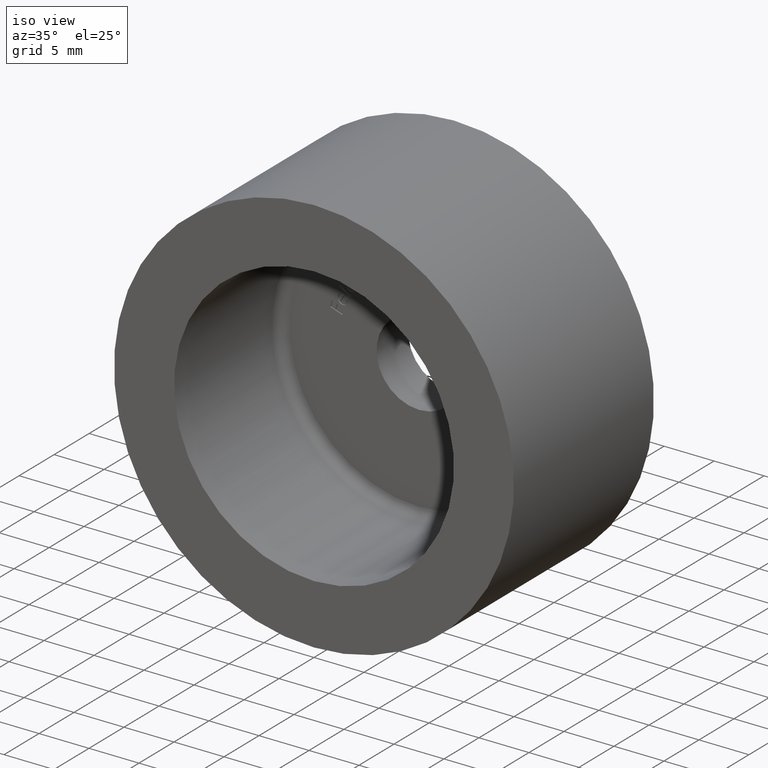
[diagram: clean part render]
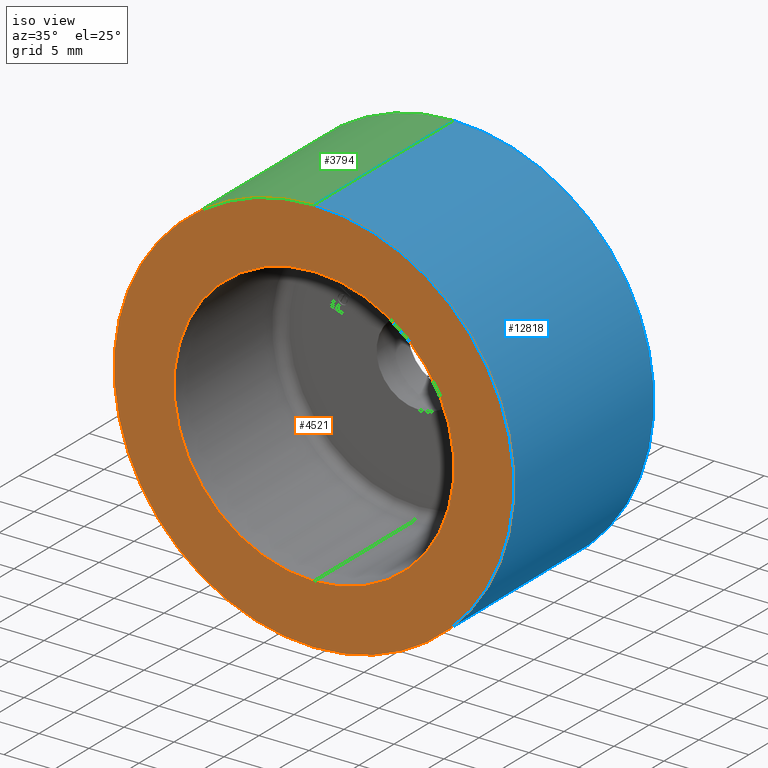
[diagram: same view with three faces highlighted in distinct colors, each labeled with its STEP entity id]
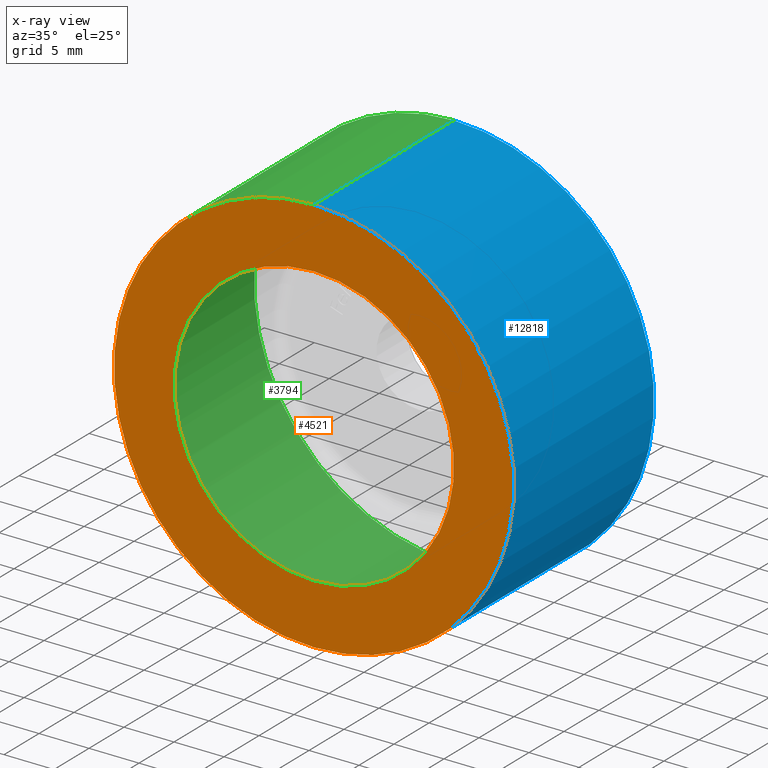
[diagram: x-ray of the same camera — body ghosted, the three highlighted faces saturated]
A machine part, iso view with three faces highlighted in distinct colors.
The next image is the same camera in x-ray (body ghosted, the three faces saturated) — at least one of them is partly hidden behind the body in this view.
Their STEP definitions:

[orange] entity #4521 — the highlighted planar face has unit normal (0, -1, 0).
#345 = DIRECTION ( 'NONE',  ( 0.000000000000000000, 0.000000000000000000, -1.000000000000000000 ) ) ;
#989 = CIRCLE ( 'NONE', #5848, 20.00000000000000000 ) ;
#1025 = VERTEX_POINT ( 'NONE', #1897 ) ;
#1130 = CARTESIAN_POINT ( 'NONE',  ( -8.499999999999998224, -1.207637078764412262E-15, 0.000000000000000000 ) ) ;
#1814 = DIRECTION ( 'NONE',  ( 0.000000000000000000, 0.000000000000000000, 1.000000000000000000 ) ) ;
#1897 = CARTESIAN_POINT ( 'NONE',  ( 1.714505518806294638E-15, 0.000000000000000000, 14.00000000000000000 ) ) ;
#2017 = VERTEX_POINT ( 'NONE', #10093 ) ;
#2519 = DIRECTION ( 'NONE',  ( -0.000000000000000000, 1.000000000000000000, -0.000000000000000000 ) ) ;
#2927 = CARTESIAN_POINT ( 'NONE',  ( 0.000000000000000000, 0.000000000000000000, 0.000000000000000000 ) ) ;
#2989 = ORIENTED_EDGE ( 'NONE', *, *, #3015, .F. ) ;
#3000 = VERTEX_POINT ( 'NONE', #6832 ) ;
#3015 = EDGE_CURVE ( 'NONE', #1025, #2017, #5189, .T. ) ;
#3692 = EDGE_CURVE ( 'NONE', #3000, #7344, #11856, .T. ) ;
#3824 = DIRECTION ( 'NONE',  ( 0.000000000000000000, 0.000000000000000000, 1.000000000000000000 ) ) ;
#3851 = CARTESIAN_POINT ( 'NONE',  ( 0.000000000000000000, 0.000000000000000000, 0.000000000000000000 ) ) ;
#4393 = EDGE_CURVE ( 'NONE', #2017, #1025, #10110, .T. ) ;
#4521 = ADVANCED_FACE ( 'NONE', ( #10866, #4606 ), #8426, .T. ) ;
#4606 = FACE_OUTER_BOUND ( 'NONE', #5200, .T. ) ;
#4834 = CARTESIAN_POINT ( 'NONE',  ( 0.000000000000000000, 0.000000000000000000, 0.000000000000000000 ) ) ;
#5083 = CARTESIAN_POINT ( 'NONE',  ( 0.000000000000000000, 0.000000000000000000, 20.00000000000000000 ) ) ;
#5189 = CIRCLE ( 'NONE', #13981, 14.00000000000000000 ) ;
#5200 = EDGE_LOOP ( 'NONE', ( #10300, #10783 ) ) ;
#5848 = AXIS2_PLACEMENT_3D ( 'NONE', #2927, #11411, #1814 ) ;
#5954 = DIRECTION ( 'NONE',  ( 0.000000000000000000, -0.000000000000000000, -1.000000000000000000 ) ) ;
#6832 = CARTESIAN_POINT ( 'NONE',  ( 2.449293598294706513E-15, 0.000000000000000000, -20.00000000000000000 ) ) ;
#7344 = VERTEX_POINT ( 'NONE', #5083 ) ;
#7391 = EDGE_CURVE ( 'NONE', #7344, #3000, #989, .T. ) ;
#7610 = DIRECTION ( 'NONE',  ( 0.000000000000000000, 0.000000000000000000, -1.000000000000000000 ) ) ;
#8208 = EDGE_LOOP ( 'NONE', ( #11573, #2989 ) ) ;
#8426 = PLANE ( 'NONE',  #10919 ) ;
#8676 = CARTESIAN_POINT ( 'NONE',  ( 0.000000000000000000, 0.000000000000000000, 0.000000000000000000 ) ) ;
#8731 = DIRECTION ( 'NONE',  ( 0.000000000000000000, -1.000000000000000000, 0.000000000000000000 ) ) ;
#10093 = CARTESIAN_POINT ( 'NONE',  ( 0.000000000000000000, 0.000000000000000000, -14.00000000000000000 ) ) ;
#10110 = CIRCLE ( 'NONE', #10817, 14.00000000000000000 ) ;
#10300 = ORIENTED_EDGE ( 'NONE', *, *, #7391, .F. ) ;
#10783 = ORIENTED_EDGE ( 'NONE', *, *, #3692, .F. ) ;
#10817 = AXIS2_PLACEMENT_3D ( 'NONE', #8676, #11232, #345 ) ;
#10866 = FACE_BOUND ( 'NONE', #8208, .T. ) ;
#10919 = AXIS2_PLACEMENT_3D ( 'NONE', #1130, #13219, #5954 ) ;
#11232 = DIRECTION ( 'NONE',  ( 0.000000000000000000, -1.000000000000000000, 0.000000000000000000 ) ) ;
#11411 = DIRECTION ( 'NONE',  ( -0.000000000000000000, 1.000000000000000000, -0.000000000000000000 ) ) ;
#11573 = ORIENTED_EDGE ( 'NONE', *, *, #4393, .F. ) ;
#11856 = CIRCLE ( 'NONE', #15579, 20.00000000000000000 ) ;
#13219 = DIRECTION ( 'NONE',  ( 0.000000000000000000, -1.000000000000000000, 0.000000000000000000 ) ) ;
#13981 = AXIS2_PLACEMENT_3D ( 'NONE', #3851, #8731, #7610 ) ;
#15579 = AXIS2_PLACEMENT_3D ( 'NONE', #4834, #2519, #3824 ) ;

[blue] entity #12818 — the highlighted cylindrical surface (partial cylindrical patch) has radius 20 mm, axis along (-0, 1, -0).
#480 = DIRECTION ( 'NONE',  ( -0.000000000000000000, 1.000000000000000000, -0.000000000000000000 ) ) ;
#527 = DIRECTION ( 'NONE',  ( 0.000000000000000000, 0.000000000000000000, 1.000000000000000000 ) ) ;
#632 = FACE_OUTER_BOUND ( 'NONE', #10689, .T. ) ;
#889 = EDGE_CURVE ( 'NONE', #7344, #11973, #8044, .T. ) ;
#989 = CIRCLE ( 'NONE', #5848, 20.00000000000000000 ) ;
#1189 = ORIENTED_EDGE ( 'NONE', *, *, #889, .F. ) ;
#1294 = ORIENTED_EDGE ( 'NONE', *, *, #7391, .T. ) ;
#1814 = DIRECTION ( 'NONE',  ( 0.000000000000000000, 0.000000000000000000, 1.000000000000000000 ) ) ;
#2927 = CARTESIAN_POINT ( 'NONE',  ( 0.000000000000000000, 0.000000000000000000, 0.000000000000000000 ) ) ;
#3000 = VERTEX_POINT ( 'NONE', #6832 ) ;
#3320 = CARTESIAN_POINT ( 'NONE',  ( 2.449293598294706907E-15, 20.00000000000000000, -20.00000000000000355 ) ) ;
#4487 = CARTESIAN_POINT ( 'NONE',  ( 2.449293598294706907E-15, 20.00000000000000000, -20.00000000000000355 ) ) ;
#5083 = CARTESIAN_POINT ( 'NONE',  ( 0.000000000000000000, 0.000000000000000000, 20.00000000000000000 ) ) ;
#5664 = DIRECTION ( 'NONE',  ( -0.000000000000000000, 1.000000000000000000, -0.000000000000000000 ) ) ;
#5848 = AXIS2_PLACEMENT_3D ( 'NONE', #2927, #11411, #1814 ) ;
#5915 = EDGE_CURVE ( 'NONE', #11973, #13315, #10667, .T. ) ;
#6209 = EDGE_CURVE ( 'NONE', #3000, #13315, #11847, .T. ) ;
#6832 = CARTESIAN_POINT ( 'NONE',  ( 2.449293598294706513E-15, 0.000000000000000000, -20.00000000000000000 ) ) ;
#7056 = ORIENTED_EDGE ( 'NONE', *, *, #5915, .F. ) ;
#7344 = VERTEX_POINT ( 'NONE', #5083 ) ;
#7391 = EDGE_CURVE ( 'NONE', #7344, #3000, #989, .T. ) ;
#7852 = CARTESIAN_POINT ( 'NONE',  ( 0.000000000000000000, 20.00000000000000000, 0.000000000000000000 ) ) ;
#8044 = LINE ( 'NONE', #12730, #12813 ) ;
#8097 = AXIS2_PLACEMENT_3D ( 'NONE', #14957, #13859, #11677 ) ;
#9978 = ORIENTED_EDGE ( 'NONE', *, *, #6209, .T. ) ;
#10667 = CIRCLE ( 'NONE', #11222, 20.00000000000000355 ) ;
#10689 = EDGE_LOOP ( 'NONE', ( #1294, #9978, #7056, #1189 ) ) ;
#11222 = AXIS2_PLACEMENT_3D ( 'NONE', #7852, #480, #527 ) ;
#11411 = DIRECTION ( 'NONE',  ( -0.000000000000000000, 1.000000000000000000, -0.000000000000000000 ) ) ;
#11677 = DIRECTION ( 'NONE',  ( 0.000000000000000000, 0.000000000000000000, 1.000000000000000000 ) ) ;
#11847 = LINE ( 'NONE', #4487, #12027 ) ;
#11973 = VERTEX_POINT ( 'NONE', #13797 ) ;
#12027 = VECTOR ( 'NONE', #5664, 1000.000000000000000 ) ;
#12730 = CARTESIAN_POINT ( 'NONE',  ( 0.000000000000000000, 20.00000000000000000, 20.00000000000000355 ) ) ;
#12813 = VECTOR ( 'NONE', #15132, 1000.000000000000000 ) ;
#12818 = ADVANCED_FACE ( 'NONE', ( #632 ), #14463, .T. ) ;
#13315 = VERTEX_POINT ( 'NONE', #3320 ) ;
#13797 = CARTESIAN_POINT ( 'NONE',  ( 0.000000000000000000, 20.00000000000000000, 20.00000000000000355 ) ) ;
#13859 = DIRECTION ( 'NONE',  ( -0.000000000000000000, 1.000000000000000000, -0.000000000000000000 ) ) ;
#14463 = CYLINDRICAL_SURFACE ( 'NONE', #8097, 20.00000000000000355 ) ;
#14957 = CARTESIAN_POINT ( 'NONE',  ( 0.000000000000000000, 20.00000000000000000, 0.000000000000000000 ) ) ;
#15132 = DIRECTION ( 'NONE',  ( -0.000000000000000000, 1.000000000000000000, -0.000000000000000000 ) ) ;

[green] entity #3794 — the highlighted cylindrical surface (partial cylindrical patch) has radius 20 mm, axis along (-0, 1, -0).
#889 = EDGE_CURVE ( 'NONE', #7344, #11973, #8044, .T. ) ;
#1515 = CARTESIAN_POINT ( 'NONE',  ( 0.000000000000000000, 20.00000000000000000, 0.000000000000000000 ) ) ;
#2519 = DIRECTION ( 'NONE',  ( -0.000000000000000000, 1.000000000000000000, -0.000000000000000000 ) ) ;
#2625 = DIRECTION ( 'NONE',  ( -0.000000000000000000, 1.000000000000000000, -0.000000000000000000 ) ) ;
#2730 = DIRECTION ( 'NONE',  ( -0.000000000000000000, 1.000000000000000000, -0.000000000000000000 ) ) ;
#3000 = VERTEX_POINT ( 'NONE', #6832 ) ;
#3320 = CARTESIAN_POINT ( 'NONE',  ( 2.449293598294706907E-15, 20.00000000000000000, -20.00000000000000355 ) ) ;
#3692 = EDGE_CURVE ( 'NONE', #3000, #7344, #11856, .T. ) ;
#3794 = ADVANCED_FACE ( 'NONE', ( #4239 ), #13535, .T. ) ;
#3824 = DIRECTION ( 'NONE',  ( 0.000000000000000000, 0.000000000000000000, 1.000000000000000000 ) ) ;
#4211 = AXIS2_PLACEMENT_3D ( 'NONE', #15687, #2625, #4930 ) ;
#4239 = FACE_OUTER_BOUND ( 'NONE', #5046, .T. ) ;
#4430 = CIRCLE ( 'NONE', #13643, 20.00000000000000355 ) ;
#4487 = CARTESIAN_POINT ( 'NONE',  ( 2.449293598294706907E-15, 20.00000000000000000, -20.00000000000000355 ) ) ;
#4834 = CARTESIAN_POINT ( 'NONE',  ( 0.000000000000000000, 0.000000000000000000, 0.000000000000000000 ) ) ;
#4930 = DIRECTION ( 'NONE',  ( 0.000000000000000000, 0.000000000000000000, 1.000000000000000000 ) ) ;
#5046 = EDGE_LOOP ( 'NONE', ( #7714, #14142, #5606, #7903 ) ) ;
#5083 = CARTESIAN_POINT ( 'NONE',  ( 0.000000000000000000, 0.000000000000000000, 20.00000000000000000 ) ) ;
#5606 = ORIENTED_EDGE ( 'NONE', *, *, #889, .T. ) ;
#5664 = DIRECTION ( 'NONE',  ( -0.000000000000000000, 1.000000000000000000, -0.000000000000000000 ) ) ;
#5876 = EDGE_CURVE ( 'NONE', #13315, #11973, #4430, .T. ) ;
#6209 = EDGE_CURVE ( 'NONE', #3000, #13315, #11847, .T. ) ;
#6832 = CARTESIAN_POINT ( 'NONE',  ( 2.449293598294706513E-15, 0.000000000000000000, -20.00000000000000000 ) ) ;
#7344 = VERTEX_POINT ( 'NONE', #5083 ) ;
#7714 = ORIENTED_EDGE ( 'NONE', *, *, #6209, .F. ) ;
#7903 = ORIENTED_EDGE ( 'NONE', *, *, #5876, .F. ) ;
#8044 = LINE ( 'NONE', #12730, #12813 ) ;
#11215 = DIRECTION ( 'NONE',  ( 0.000000000000000000, 0.000000000000000000, 1.000000000000000000 ) ) ;
#11847 = LINE ( 'NONE', #4487, #12027 ) ;
#11856 = CIRCLE ( 'NONE', #15579, 20.00000000000000000 ) ;
#11973 = VERTEX_POINT ( 'NONE', #13797 ) ;
#12027 = VECTOR ( 'NONE', #5664, 1000.000000000000000 ) ;
#12730 = CARTESIAN_POINT ( 'NONE',  ( 0.000000000000000000, 20.00000000000000000, 20.00000000000000355 ) ) ;
#12813 = VECTOR ( 'NONE', #15132, 1000.000000000000000 ) ;
#13315 = VERTEX_POINT ( 'NONE', #3320 ) ;
#13535 = CYLINDRICAL_SURFACE ( 'NONE', #4211, 20.00000000000000355 ) ;
#13643 = AXIS2_PLACEMENT_3D ( 'NONE', #1515, #2730, #11215 ) ;
#13797 = CARTESIAN_POINT ( 'NONE',  ( 0.000000000000000000, 20.00000000000000000, 20.00000000000000355 ) ) ;
#14142 = ORIENTED_EDGE ( 'NONE', *, *, #3692, .T. ) ;
#15132 = DIRECTION ( 'NONE',  ( -0.000000000000000000, 1.000000000000000000, -0.000000000000000000 ) ) ;
#15579 = AXIS2_PLACEMENT_3D ( 'NONE', #4834, #2519, #3824 ) ;
#15687 = CARTESIAN_POINT ( 'NONE',  ( 0.000000000000000000, 20.00000000000000000, 0.000000000000000000 ) ) ;